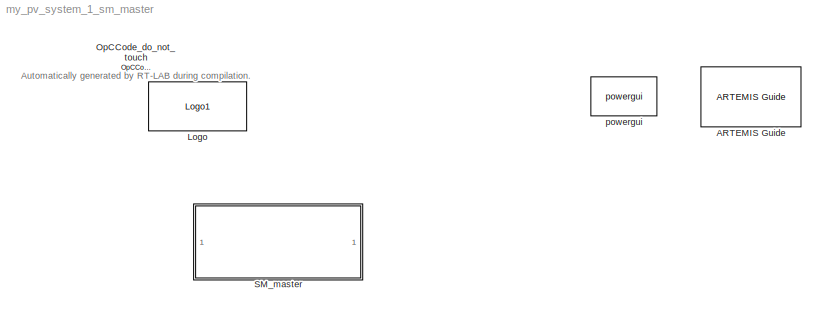
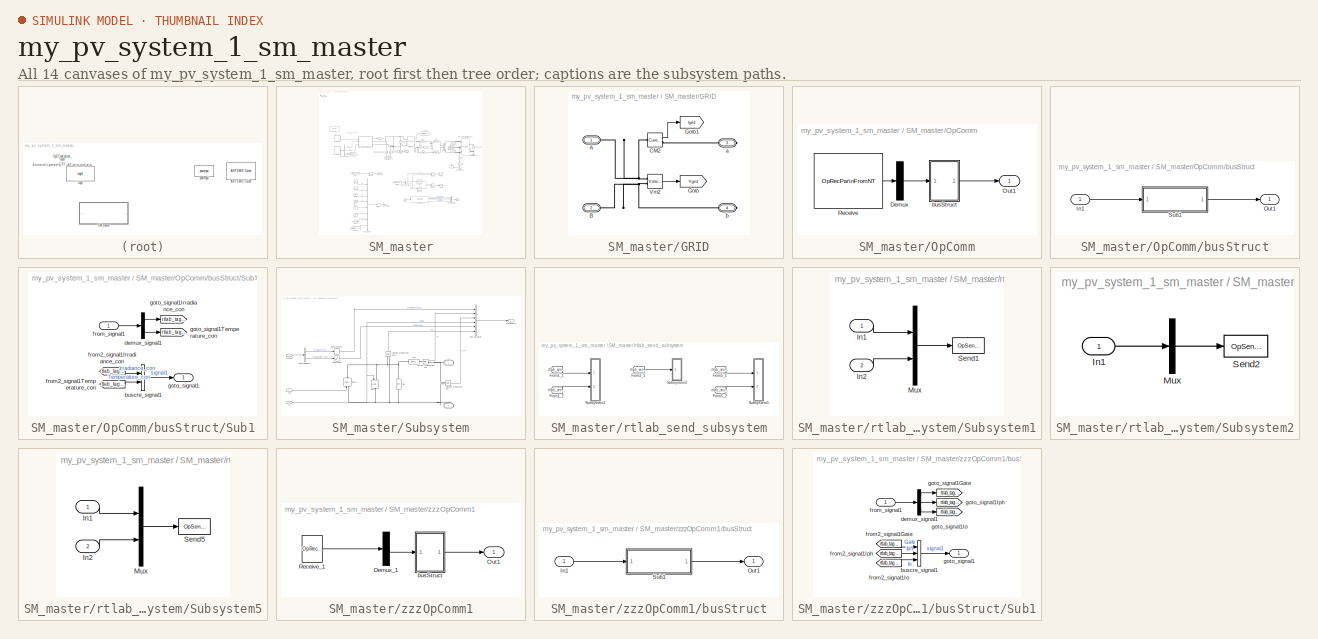
[diagram: thumbnail index - all 14 canvases of the model, root first then tree order]
MODEL my_pv_system_1_sm_master
KIND model
BLOCK [Reference] ARTEMIS Guide  REF=artemis/ARTEMIS/ARTEMIS Guide
  Description = 5.0_z1
  LF = off
  Ports = []
  RT_fullcomp = off
  SID = 394
  SPSRulesBlock = SPSRules
  SourceBlock = artemis/ARTEMIS/ARTEMIS Guide
  SourceType = ARTEMISmethode
  Tag = FTSSmethode_opal_4hx0r99
  Thy_Impulse = on
  Ts = 50e-6
  ao = on
  ct_mac = off
  ctmm = off
  custom_type = off
  dpl_type = ARTEMiS DPL
  dtc = Off
  dtc_extra = 1
  dtc_opt = normal
  dtc_pied = 0.5
  dtc_sws = normal
  dyna = off
  lin_mov = off
  lock = on
  lsp = [0.001 2]
  nb_perm = 4
  opt = art5
  para = on
  paraExtinctionThy = off
  rlc_type = off
  simtype = off
  spike_skip = Disabled
  ssn = on
  ssn_ImpulseLoopBlockedStateUpdate = 5
  ssn_ext = off
  ssn_impulse = off
  ssn_impulse_loop = 5
  ssn_itvc = off
  ssn_ivic = off
  ssn_mov_iter_number = 5
  ssn_quasimpulse = off
  ssn_solver = Art5 with Backward Euler nodal interface
  ssn_switch_iter_number = 5
  tre = on
BLOCK [Reference] Logo  REF=opal_lib/Logo1
  Ports = []
  SID = 1
  SourceBlock = opal_lib/Logo1
  SourceType = Opal-RT logo
  vide = []
BLOCK [Reference] OpCCode_do_not_touch  REF=opal_lib/Communication/OpCCode
  FunctionWithSeparateData = off
  GeneratePreprocessorConditionals = off
  Ports = []
  SID = 431
  ShowPortLabels = FromPortIcon
  SourceBlock = opal_lib/Communication/OpCCode
  SystemSampleTime = -1
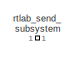
[diagram: SM_master - part 1/4, top left region]
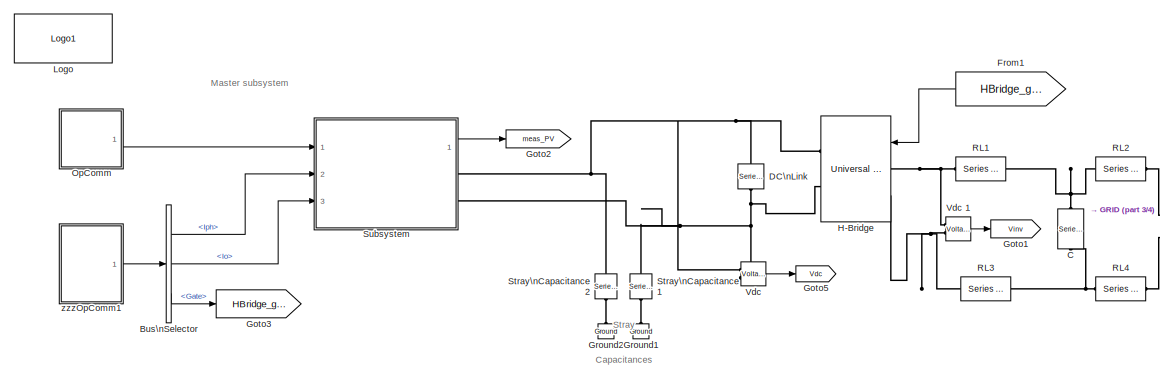
[diagram: SM_master - part 2/4, central region]
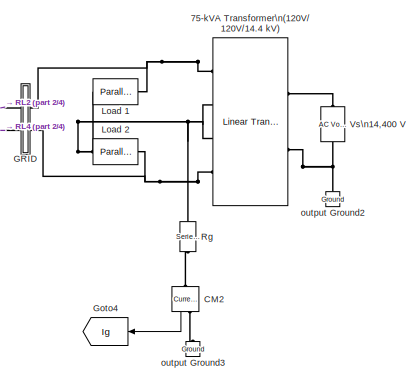
[diagram: SM_master - part 3/4, middle right region]
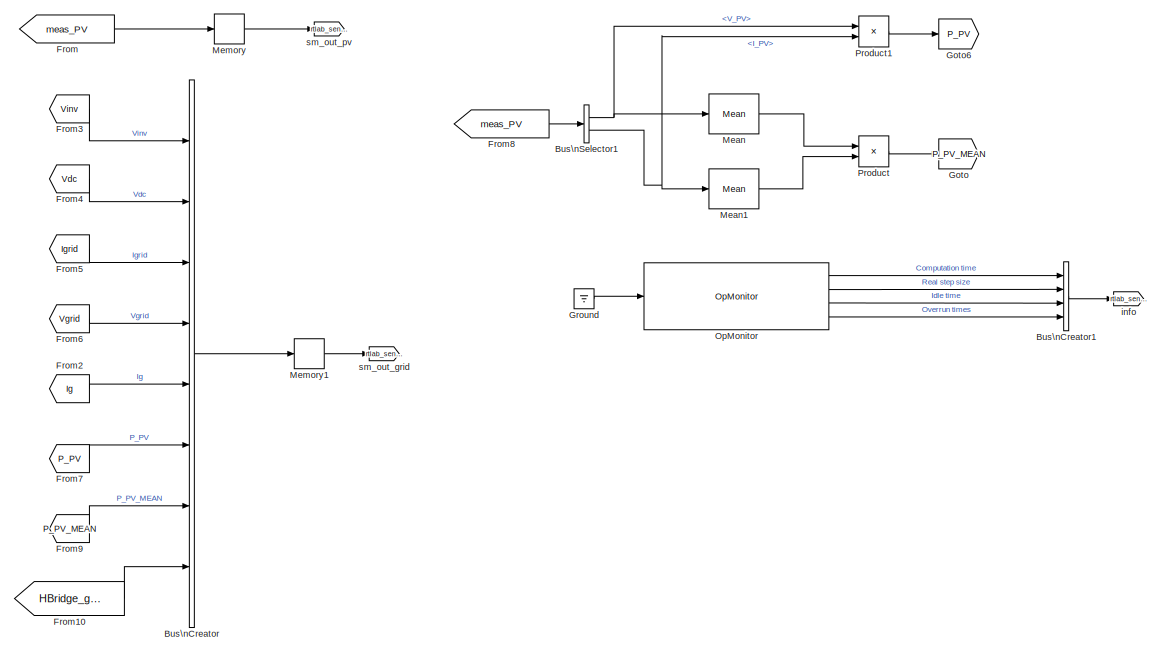
[diagram: SM_master - part 4/4, bottom center region]
BLOCK [SubSystem] SM_master
  Ports = []
  RequestExecContextInheritance = off
  SID = 14
BLOCK [Reference] SM_master/75-kVA Transformer\n(120V//120V//14.4 kV)  REF=powerlib/Elements/Linear Transformer
  DataType = off
  Measurements = None
  NominalPower = [75e3,60]
  Ports = [0, 0, 0, 0, 0, 2, 4]
  RmLm = [50,50]
  SID = 86
  SourceBlock = powerlib/Elements/Linear Transformer
  SourceType = Linear Transformer
  ThreeWindings = on
  UNITS = pu
  winding1 = [14.4e3 0.01,0.03]
  winding2 = [120,0.02,0]
  winding3 = [120,0.02,0]
BLOCK [BusCreator] SM_master/Bus\nCreator
  DisplayOption = bar
  Inputs = 8
  Ports = [8, 1]
  SID = 354
BLOCK [BusCreator] SM_master/Bus\nCreator1
  DisplayOption = bar
  Ports = [4, 1]
  SID = 378
BLOCK [BusSelector] SM_master/Bus\nSelector
  OutputSignals = Iph,Io,Gate
  Ports = [1, 3]
  SID = 374
BLOCK [BusSelector] SM_master/Bus\nSelector1
  OutputSignals = V_PV,I_PV
  Ports = [1, 2]
  SID = 387
BLOCK [Reference] SM_master/C  REF=powerlib/Elements/Series RLC Load
  ActivePower = 10.5
  AttributesFormatString = \\n
  CapacitivePower = 525
  InductivePower = 0
  InitialCurrent = 0
  InitialVoltage = 0
  LConnTagsString = a
  Measurements = None
  NominalFrequency = 60
  NominalVoltage = 240
  Ports = [0, 0, 0, 0, 0, 1, 1]
  RConnTagsString = __new0
  SID = 87
  SetiL0 = off
  Setx0 = off
  SourceBlock = powerlib/Elements/Series RLC Load
  SourceType = Series RLC Load
BLOCK [Reference] SM_master/CM2  REF=powerlib/Measurements/Current Measurement
  OutputType = Complex
  PSBequivalent = 0
  PhasorSimulation = off
  Ports = [0, 1, 0, 0, 0, 1, 1]
  SID = 88
  SourceBlock = powerlib/Measurements/Current Measurement
  SourceType = Current Measurement
  UserDataPersistent = on
BLOCK [Reference] SM_master/DC\nLink  REF=powerlib/Elements/Series RLC Branch
  AttributesFormatString = \\n
  BranchType = C
  Capacitance = 3000e-6
  Inductance = 1.0
  InitialCurrent = 0
  InitialVoltage = 425
  LConnTagsString = __new0
  Measurements = None
  Ports = [0, 0, 0, 0, 0, 1, 1]
  RConnTagsString = __new0
  Resistance = 1.0
  SID = 89
  SetiL0 = off
  Setx0 = on
  SourceBlock = powerlib/Elements/Series RLC Branch
  SourceType = Series RLC Branch
BLOCK [From] SM_master/From
  GotoTag = meas_PV
  SID = 146
  TagVisibility = global
BLOCK [From] SM_master/From1
  GotoTag = HBridge_gate
  SID = 148
  TagVisibility = global
BLOCK [From] SM_master/From10
  GotoTag = HBridge_gate
  SID = 401
  TagVisibility = global
BLOCK [From] SM_master/From2
  GotoTag = Ig
  SID = 355
  TagVisibility = global
BLOCK [From] SM_master/From3
  GotoTag = Vinv
  SID = 356
  TagVisibility = global
BLOCK [From] SM_master/From4
  GotoTag = Vdc
  SID = 164
  TagVisibility = global
BLOCK [From] SM_master/From5
  GotoTag = Igrid
  SID = 166
  TagVisibility = global
BLOCK [From] SM_master/From6
  GotoTag = Vgrid
  SID = 167
  TagVisibility = global
BLOCK [From] SM_master/From7
  GotoTag = P_PV
  SID = 393
BLOCK [From] SM_master/From8
  GotoTag = meas_PV
  SID = 386
  TagVisibility = global
BLOCK [From] SM_master/From9
  GotoTag = P_PV_MEAN
  SID = 400
BLOCK [SubSystem] SM_master/GRID
  Ports = [0, 0, 0, 0, 0, 2, 2]
  RequestExecContextInheritance = off
  SID = 90
BLOCK [PMIOPort] SM_master/GRID/A
  Port = 1
  SID = 95
  Side = Left
BLOCK [PMIOPort] SM_master/GRID/B
  Port = 2
  SID = 96
  Side = Left
BLOCK [Reference] SM_master/GRID/CM2  REF=powerlib/Measurements/Current Measurement
  OutputType = Complex
  PSBequivalent = 0
  PhasorSimulation = off
  Ports = [0, 1, 0, 0, 0, 1, 1]
  SID = 91
  SourceBlock = powerlib/Measurements/Current Measurement
  SourceType = Current Measurement
  UserDataPersistent = on
BLOCK [Goto] SM_master/GRID/Goto
  GotoTag = Vgrid
  SID = 92
  TagVisibility = global
BLOCK [Goto] SM_master/GRID/Goto1
  GotoTag = Igrid
  SID = 93
  TagVisibility = global
BLOCK [Reference] SM_master/GRID/Vm2  REF=powerlib/Measurements/Voltage Measurement
  OutputType = Complex
  PSBequivalent = 0
  PhasorSimulation = off
  Ports = [0, 1, 0, 0, 0, 2]
  SID = 94
  SourceBlock = powerlib/Measurements/Voltage Measurement
  SourceType = Voltage Measurement
  UserDataPersistent = on
BLOCK [PMIOPort] SM_master/GRID/a
  Port = 3
  SID = 97
  Side = Right
BLOCK [PMIOPort] SM_master/GRID/b
  Port = 4
  SID = 98
  Side = Right
BLOCK [Goto] SM_master/Goto
  GotoTag = P_PV_MEAN
  SID = 392
BLOCK [Goto] SM_master/Goto1
  GotoTag = Vinv
  SID = 99
  TagVisibility = global
BLOCK [Goto] SM_master/Goto2
  GotoTag = meas_PV
  SID = 100
  TagVisibility = global
BLOCK [Goto] SM_master/Goto3
  GotoTag = HBridge_gate
  SID = 147
  TagVisibility = global
BLOCK [Goto] SM_master/Goto4
  GotoTag = Ig
  SID = 150
  TagVisibility = global
BLOCK [Goto] SM_master/Goto5
  GotoTag = Vdc
  SID = 101
  TagVisibility = global
BLOCK [Goto] SM_master/Goto6
  GotoTag = P_PV
  SID = 398
BLOCK [Ground] SM_master/Ground
  SID = 379
BLOCK [Reference] SM_master/Ground1  REF=powerlib/Elements/Ground
  LConnTagsString = a
  Ports = [0, 0, 0, 0, 0, 1]
  SID = 102
  SourceBlock = powerlib/Elements/Ground
  SourceType = Ground
BLOCK [Reference] SM_master/Ground2  REF=powerlib/Elements/Ground
  LConnTagsString = a
  Ports = [0, 0, 0, 0, 0, 1]
  SID = 103
  SourceBlock = powerlib/Elements/Ground
  SourceType = Ground
BLOCK [Reference] SM_master/H-Bridge   REF=powerlib/Power\nElectronics/Universal Bridge
  Arms = 2
  Device = IGBT / Diodes
  ForwardVoltage = 0
  ForwardVoltages = [ 0 0 ]
  GTOparameters = [ 10e-6 , 20e-6 ]
  IGBTparameters = [ 50e-6 , 50e-6 ]*0
  Lon = 0
  Measurements = None
  Measurements_2 = None
  Ports = [1, 0, 0, 0, 0, 2, 2]
  Ron = 1e-3
  SID = 104
  SnubberCapacitance = inf
  SnubberResistance = 1e6
  SourceBlock = powerlib/Power\nElectronics/Universal Bridge
  SourceType = Universal Bridge
  converterType = Rectifier
BLOCK [Reference] SM_master/Load 1  REF=powerlib/Elements/Parallel RLC Load
  ActivePower = 5e3
  AttributesFormatString = \\n
  CapacitivePower = 0
  InductivePower = 2e3
  InitialCurrent = 0
  InitialVoltage = 0
  LConnTagsString = a
  Measurements = None
  NominalFrequency = 50
  NominalVoltage = 120
  Ports = [0, 0, 0, 0, 0, 1, 1]
  RConnTagsString = __new0
  SID = 107
  SetiL0 = off
  Setx0 = off
  SourceBlock = powerlib/Elements/Parallel RLC Load
  SourceType = Parallel RLC Load
BLOCK [Reference] SM_master/Load 2  REF=powerlib/Elements/Parallel RLC Load
  ActivePower = 5e3
  AttributesFormatString = \\n
  CapacitivePower = 0
  InductivePower = 2e3
  InitialCurrent = 0
  InitialVoltage = 0
  LConnTagsString = a
  Measurements = None
  NominalFrequency = 50
  NominalVoltage = 120
  Ports = [0, 0, 0, 0, 0, 1, 1]
  RConnTagsString = __new0
  SID = 108
  SetiL0 = off
  Setx0 = off
  SourceBlock = powerlib/Elements/Parallel RLC Load
  SourceType = Parallel RLC Load
BLOCK [Reference] SM_master/Logo  REF=opal_lib/Logo1
  Ports = []
  SID = 18
  SourceBlock = opal_lib/Logo1
  SourceType = Opal-RT logo
  vide = []
BLOCK [Reference] SM_master/Mean  REF=powerlib_meascontrol/Measurements/Mean
  Freq = 50
  Ports = [1, 1]
  SID = 388
  SourceBlock = powerlib_meascontrol/Measurements/Mean
  SourceType = Mean
  Ts = 0
  Vinit = 0
BLOCK [Reference] SM_master/Mean1  REF=powerlib_meascontrol/Measurements/Mean
  Freq = 50
  Ports = [1, 1]
  SID = 389
  SourceBlock = powerlib_meascontrol/Measurements/Mean
  SourceType = Mean
  Ts = 0
  Vinit = 0
BLOCK [Memory] SM_master/Memory
  InheritSampleTime = on
  SID = 19
BLOCK [Memory] SM_master/Memory1
  InheritSampleTime = on
  SID = 162
BLOCK [SubSystem] SM_master/OpComm
  Ports = [0, 1]
  RequestExecContextInheritance = off
  SID = 448
BLOCK [Demux] SM_master/OpComm/Demux
  Outputs = [2]
  Ports = [1, 1]
  SID = 449
BLOCK [Outport] SM_master/OpComm/Out1
  IconDisplay = Port number
  SID = 463
BLOCK [Reference] SM_master/OpComm/Receive  REF=opal_lib/Communication/OpRecPar\nFromNT
  Data_width = 2
  InitialConditions = [500;25]
  Ports = [0, 1]
  SID = 450
  SourceBlock = opal_lib/Communication/OpRecPar\nFromNT
  SourceType = OPAL Receive Icon
BLOCK [SubSystem] SM_master/OpComm/busStruct
  Ports = [1, 1]
  RequestExecContextInheritance = off
  SID = 451
BLOCK [Inport] SM_master/OpComm/busStruct/In1
  IconDisplay = Port number
  SID = 452
BLOCK [Outport] SM_master/OpComm/busStruct/Out1
  IconDisplay = Port number
  SID = 462
BLOCK [SubSystem] SM_master/OpComm/busStruct/Sub1
  Ports = [1, 1]
  RequestExecContextInheritance = off
  SID = 453
BLOCK [BusCreator] SM_master/OpComm/busStruct/Sub1/buscre_signal1
  Inputs = 2
  Ports = [2, 1]
  SID = 455
BLOCK [Demux] SM_master/OpComm/busStruct/Sub1/demux_signal1
  Outputs = [1  1]
  Ports = [1, 2]
  SID = 456
BLOCK [From] SM_master/OpComm/busStruct/Sub1/from2_signal1Irradiance_con
  GotoTag = rtlab_tag_1
  SID = 457
BLOCK [From] SM_master/OpComm/busStruct/Sub1/from2_signal1Temperature_con
  GotoTag = rtlab_tag_2
  SID = 458
BLOCK [Inport] SM_master/OpComm/busStruct/Sub1/from_signal1
  IconDisplay = Port number
  SID = 454
BLOCK [Outport] SM_master/OpComm/busStruct/Sub1/goto_signal1
  IconDisplay = Port number
  SID = 461
BLOCK [Goto] SM_master/OpComm/busStruct/Sub1/goto_signal1Irradiance_con
  GotoTag = rtlab_tag_1
  SID = 459
BLOCK [Goto] SM_master/OpComm/busStruct/Sub1/goto_signal1Temperature_con
  GotoTag = rtlab_tag_2
  SID = 460
BLOCK [Reference] SM_master/OpMonitor  REF=rtlab/Monitoring/OpMonitor
  Ports = [1, 4]
  SID = 380
  SourceBlock = rtlab/Monitoring/OpMonitor
  SourceType = OpMonitor
  compute_time = on
  idle_time = on
  nb_overruns = on
  real_step = on
  user_name = my_event_name,another_event_name
  user_time = off
BLOCK [Product] SM_master/Product
  InputSameDT = off
  OutDataTypeStr = Inherit: Inherit via internal rule
  Ports = [2, 1]
  RndMeth = Floor
  SID = 390
  SaturateOnIntegerOverflow = off
BLOCK [Product] SM_master/Product1
  InputSameDT = off
  OutDataTypeStr = Inherit: Inherit via internal rule
  Ports = [2, 1]
  RndMeth = Floor
  SID = 399
  SaturateOnIntegerOverflow = off
BLOCK [Reference] SM_master/RL1  REF=powerlib/Elements/Series RLC Branch
  BranchType = RL
  Capacitance = 1e-6
  Inductance = 2.183e-3
  InitialCurrent = 0
  InitialVoltage = 0
  LConnTagsString = __new0
  Measurements = None
  Ports = [0, 0, 0, 0, 0, 1, 1]
  RConnTagsString = __new0
  Resistance = 8.23e-3
  SID = 109
  SetiL0 = off
  Setx0 = off
  SourceBlock = powerlib/Elements/Series RLC Branch
  SourceType = Series RLC Branch
BLOCK [Reference] SM_master/RL2  REF=powerlib/Elements/Series RLC Branch
  BranchType = RL
  Capacitance = 1e-6
  Inductance = 2.183e-3
  InitialCurrent = 0
  InitialVoltage = 0
  LConnTagsString = __new0
  Measurements = None
  Ports = [0, 0, 0, 0, 0, 1, 1]
  RConnTagsString = __new0
  Resistance = 8.23e-3
  SID = 110
  SetiL0 = off
  Setx0 = off
  SourceBlock = powerlib/Elements/Series RLC Branch
  SourceType = Series RLC Branch
BLOCK [Reference] SM_master/RL3  REF=powerlib/Elements/Series RLC Branch
  BranchType = RL
  Capacitance = 1e-6
  Inductance = 2.183e-3
  InitialCurrent = 0
  InitialVoltage = 0
  LConnTagsString = __new0
  Measurements = None
  Ports = [0, 0, 0, 0, 0, 1, 1]
  RConnTagsString = __new0
  Resistance = 8.23e-3
  SID = 111
  SetiL0 = off
  Setx0 = off
  SourceBlock = powerlib/Elements/Series RLC Branch
  SourceType = Series RLC Branch
BLOCK [Reference] SM_master/RL4  REF=powerlib/Elements/Series RLC Branch
  BranchType = RL
  Capacitance = 1e-6
  Inductance = 2.183e-3
  InitialCurrent = 0
  InitialVoltage = 0
  LConnTagsString = __new0
  Measurements = None
  Ports = [0, 0, 0, 0, 0, 1, 1]
  RConnTagsString = __new0
  Resistance = 8.23e-3
  SID = 112
  SetiL0 = off
  Setx0 = off
  SourceBlock = powerlib/Elements/Series RLC Branch
  SourceType = Series RLC Branch
BLOCK [Reference] SM_master/Rg  REF=powerlib/Elements/Series RLC Branch
  BranchType = R
  Capacitance = 50e-9
  Inductance = 1
  InitialCurrent = 0
  InitialVoltage = 0
  LConnTagsString = __new0
  Measurements = None
  Ports = [0, 0, 0, 0, 0, 1, 1]
  RConnTagsString = __new0
  Resistance = 0.2
  SID = 114
  SetiL0 = off
  Setx0 = off
  SourceBlock = powerlib/Elements/Series RLC Branch
  SourceType = Series RLC Branch
BLOCK [Reference] SM_master/Stray\nCapacitance1  REF=powerlib/Elements/Series RLC Branch
  BranchType = C
  Capacitance = 4e-9
  Inductance = 1
  InitialCurrent = 0
  InitialVoltage = 0
  LConnTagsString = __new0
  Measurements = None
  Ports = [0, 0, 0, 0, 0, 1, 1]
  RConnTagsString = __new0
  Resistance = 1e-3
  SID = 116
  SetiL0 = off
  Setx0 = off
  SourceBlock = powerlib/Elements/Series RLC Branch
  SourceType = Series RLC Branch
BLOCK [Reference] SM_master/Stray\nCapacitance2  REF=powerlib/Elements/Series RLC Branch
  BranchType = C
  Capacitance = 4e-9
  Inductance = 1
  InitialCurrent = 0
  InitialVoltage = 0
  LConnTagsString = __new0
  Measurements = None
  Ports = [0, 0, 0, 0, 0, 1, 1]
  RConnTagsString = __new0
  Resistance = 1e-3
  SID = 117
  SetiL0 = off
  Setx0 = off
  SourceBlock = powerlib/Elements/Series RLC Branch
  SourceType = Series RLC Branch
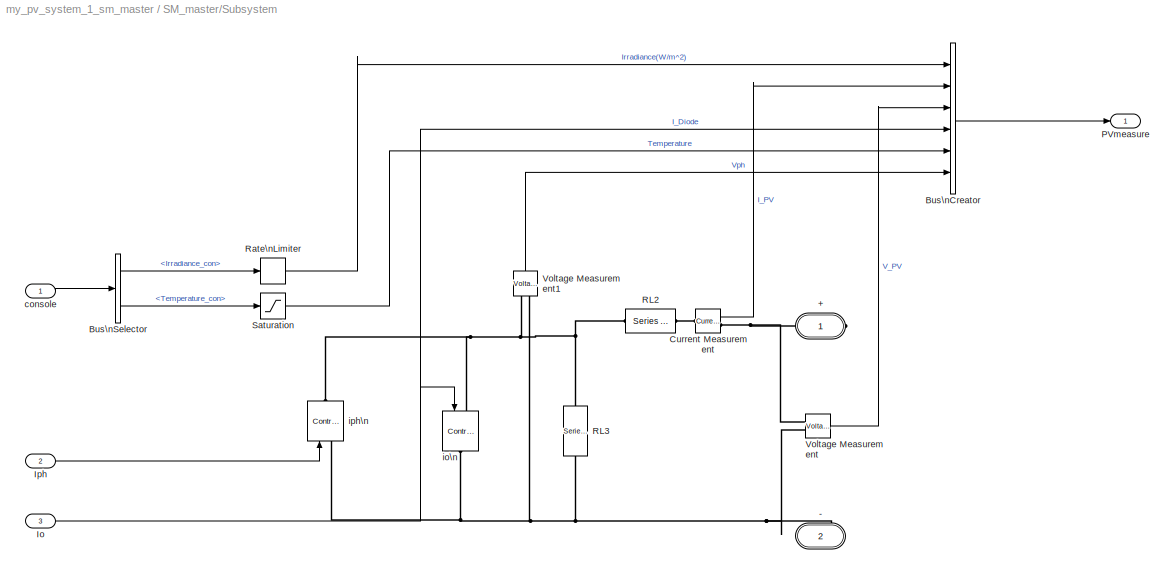
BLOCK [SubSystem] SM_master/Subsystem
  Ports = [3, 1, 0, 0, 0, 0, 2]
  RequestExecContextInheritance = off
  SID = 118
BLOCK [PMIOPort] SM_master/Subsystem/+
  Port = 1
  SID = 135
  Side = Right
BLOCK [PMIOPort] SM_master/Subsystem/-
  Port = 2
  SID = 136
  Side = Right
BLOCK [BusCreator] SM_master/Subsystem/Bus\nCreator
  DisplayOption = bar
  Inputs = 6
  Ports = [6, 1]
  SID = 353
BLOCK [BusSelector] SM_master/Subsystem/Bus\nSelector
  OutputSignals = Irradiance_con,Temperature_con
  Ports = [1, 2]
  SID = 372
BLOCK [Reference] SM_master/Subsystem/Current Measurement  REF=powerlib/Measurements/Current Measurement
  OutputType = Complex
  PSBequivalent = 0
  PhasorSimulation = off
  Ports = [0, 1, 0, 0, 0, 1, 1]
  SID = 126
  SourceBlock = powerlib/Measurements/Current Measurement
  SourceType = Current Measurement
  UserDataPersistent = on
BLOCK [Inport] SM_master/Subsystem/Io
  IconDisplay = Port number
  Port = 3
  SID = 376
BLOCK [Inport] SM_master/Subsystem/Iph
  IconDisplay = Port number
  Port = 2
  SID = 373
BLOCK [Outport] SM_master/Subsystem/PVmeasure
  IconDisplay = Port number
  SID = 137
BLOCK [Reference] SM_master/Subsystem/RL2  REF=powerlib/Elements/Series RLC Branch
  BranchType = R
  Capacitance = 1e-6
  Inductance = 2.183e-3
  InitialCurrent = 0
  InitialVoltage = 0
  LConnTagsString = __new0
  Measurements = None
  Ports = [0, 0, 0, 0, 0, 1, 1]
  RConnTagsString = __new0
  Resistance = 0.247*14
  SID = 129
  SetiL0 = off
  Setx0 = off
  SourceBlock = powerlib/Elements/Series RLC Branch
  SourceType = Series RLC Branch
BLOCK [Reference] SM_master/Subsystem/RL3  REF=powerlib/Elements/Series RLC Branch
  BranchType = R
  Capacitance = 1e-6
  Inductance = 2.183e-3
  InitialCurrent = 0
  InitialVoltage = 0
  LConnTagsString = __new0
  Measurements = None
  Ports = [0, 0, 0, 0, 0, 1, 1]
  RConnTagsString = __new0
  Resistance = 301.8*14
  SID = 130
  SetiL0 = off
  Setx0 = off
  SourceBlock = powerlib/Elements/Series RLC Branch
  SourceType = Series RLC Branch
BLOCK [RateLimiter] SM_master/Subsystem/Rate\nLimiter
  FallingSlewLimit = -8000
  InitialCondition = 1000
  RisingSlewLimit = 8000
  SID = 113
  SampleTimeMode = inherited
BLOCK [Saturate] SM_master/Subsystem/Saturation
  InputPortMap = u0
  LowerLimit = 5
  Ports = [1, 1]
  SID = 115
  UpperLimit = 55
BLOCK [Reference] SM_master/Subsystem/Voltage Measurement  REF=powerlib/Measurements/Voltage Measurement
  OutputType = Complex
  PSBequivalent = 0
  PhasorSimulation = off
  Ports = [0, 1, 0, 0, 0, 2]
  SID = 131
  SourceBlock = powerlib/Measurements/Voltage Measurement
  SourceType = Voltage Measurement
  UserDataPersistent = on
BLOCK [Reference] SM_master/Subsystem/Voltage Measurement1  REF=powerlib/Measurements/Voltage Measurement
  OutputType = Complex
  PSBequivalent = 0
  PhasorSimulation = off
  Ports = [0, 1, 0, 0, 0, 2]
  SID = 132
  SourceBlock = powerlib/Measurements/Voltage Measurement
  SourceType = Voltage Measurement
  UserDataPersistent = on
BLOCK [Inport] SM_master/Subsystem/console
  IconDisplay = Port number
  SID = 371
BLOCK [Reference] SM_master/Subsystem/io\n  REF=powerlib/Electrical\nSources/Controlled Current Source
  Amplitude = 8.05
  Frequency = 0
  Initialize = on
  Measurements = None
  Phase = 0
  Ports = [1, 0, 0, 0, 0, 1, 1]
  SID = 133
  SourceBlock = powerlib/Electrical\nSources/Controlled Current Source
  SourceType = Controlled Current Source
  Source_Type = DC
BLOCK [Reference] SM_master/Subsystem/iph\n  REF=powerlib/Electrical\nSources/Controlled Current Source
  Amplitude = 8.05
  Frequency = 0
  Initialize = on
  Measurements = None
  Phase = 0
  Ports = [1, 0, 0, 0, 0, 1, 1]
  SID = 134
  SourceBlock = powerlib/Electrical\nSources/Controlled Current Source
  SourceType = Controlled Current Source
  Source_Type = DC
BLOCK [Reference] SM_master/Vdc   REF=powerlib/Measurements/Voltage Measurement
  AttributesFormatString = \\n
  OutputType = Magnitude
  PSBequivalent = 0
  PhasorSimulation = off
  Ports = [0, 1, 0, 0, 0, 2]
  SID = 139
  SourceBlock = powerlib/Measurements/Voltage Measurement
  SourceType = Voltage Measurement
  Tag = PoWeRsYsTeMmEaSuReMeNt
BLOCK [Reference] SM_master/Vdc 1  REF=powerlib/Measurements/Voltage Measurement
  AttributesFormatString = \\n
  OutputType = Magnitude
  PSBequivalent = 0
  PhasorSimulation = off
  Ports = [0, 1, 0, 0, 0, 2]
  SID = 140
  SourceBlock = powerlib/Measurements/Voltage Measurement
  SourceType = Voltage Measurement
  Tag = PoWeRsYsTeMmEaSuReMeNt
BLOCK [Reference] SM_master/Vs\n14,400 V  REF=powerlib/Electrical\nSources/AC Voltage Source
  Amplitude = 14400*sqrt(2)
  AttributesFormatString = \\n
  Description = source block
  Frequency = 50
  Measurements = None
  Phase = 0
  Ports = [0, 0, 0, 0, 0, 1, 1]
  SID = 141
  SampleTime = 0
  SourceBlock = powerlib/Electrical\nSources/AC Voltage Source
  SourceType = AC Voltage Source
BLOCK [Goto] SM_master/info
  GotoTag = rtlab_send_3
  SID = 522
  TagVisibility = global
BLOCK [Reference] SM_master/output Ground2  REF=powerlib/Elements/Ground
  AttributesFormatString = \\n
  LConnTagsString = a
  Ports = [0, 0, 0, 0, 0, 1]
  SID = 142
  SourceBlock = powerlib/Elements/Ground
  SourceType = Ground
BLOCK [Reference] SM_master/output Ground3  REF=powerlib/Elements/Ground
  AttributesFormatString = \\n
  LConnTagsString = a
  Ports = [0, 0, 0, 0, 0, 1]
  SID = 143
  SourceBlock = powerlib/Elements/Ground
  SourceType = Ground
BLOCK [SubSystem] SM_master/rtlab_send_subsystem
  Ports = []
  Priority = -100
  RequestExecContextInheritance = off
  SID = 500
BLOCK [From] SM_master/rtlab_send_subsystem/From1_1
  GotoTag = rtlab_send_1
  SID = 504
BLOCK [From] SM_master/rtlab_send_subsystem/From1_2
  GotoTag = rtlab_send_2
  SID = 506
BLOCK [From] SM_master/rtlab_send_subsystem/From2_1
  GotoTag = rtlab_send_3
  SID = 511
BLOCK [From] SM_master/rtlab_send_subsystem/From5_1
  GotoTag = rtlab_send_1
  SID = 516
BLOCK [From] SM_master/rtlab_send_subsystem/From5_2
  GotoTag = rtlab_send_2
  SID = 518
BLOCK [SubSystem] SM_master/rtlab_send_subsystem/Subsystem1
  Ports = [2]
  RequestExecContextInheritance = off
  SID = 501
BLOCK [Inport] SM_master/rtlab_send_subsystem/Subsystem1/In1
  IconDisplay = Port number
  SID = 505
BLOCK [Inport] SM_master/rtlab_send_subsystem/Subsystem1/In2
  IconDisplay = Port number
  Port = 2
  SID = 507
BLOCK [Mux] SM_master/rtlab_send_subsystem/Subsystem1/Mux
  Inputs = 2
  Ports = [2, 1]
  SID = 502
BLOCK [Reference] SM_master/rtlab_send_subsystem/Subsystem1/Send1  REF=opal_lib/Communication/OpSendToNT
  Acqu_group = 1
  Ports = [1]
  SID = 503
  SourceBlock = opal_lib/Communication/OpSendToNT
  SourceType = OPAL Send Icon
BLOCK [SubSystem] SM_master/rtlab_send_subsystem/Subsystem2
  Ports = [1]
  RequestExecContextInheritance = off
  SID = 508
BLOCK [Inport] SM_master/rtlab_send_subsystem/Subsystem2/In1
  IconDisplay = Port number
  SID = 512
BLOCK [Mux] SM_master/rtlab_send_subsystem/Subsystem2/Mux
  Inputs = 1
  Ports = [1, 1]
  SID = 509
BLOCK [Reference] SM_master/rtlab_send_subsystem/Subsystem2/Send2  REF=opal_lib/Communication/OpSendToNT
  Acqu_group = 2
  Ports = [1]
  SID = 510
  SourceBlock = opal_lib/Communication/OpSendToNT
  SourceType = OPAL Send Icon
BLOCK [SubSystem] SM_master/rtlab_send_subsystem/Subsystem5
  Ports = [2]
  Priority = -200000
  RequestExecContextInheritance = off
  SID = 513
  TreatAsAtomicUnit = on
BLOCK [Inport] SM_master/rtlab_send_subsystem/Subsystem5/In1
  IconDisplay = Port number
  SID = 517
BLOCK [Inport] SM_master/rtlab_send_subsystem/Subsystem5/In2
  IconDisplay = Port number
  Port = 2
  SID = 519
BLOCK [Mux] SM_master/rtlab_send_subsystem/Subsystem5/Mux
  Inputs = 2
  Ports = [2, 1]
  SID = 514
BLOCK [Reference] SM_master/rtlab_send_subsystem/Subsystem5/Send5  REF=opal_lib/Communication/OpSend_rt
  Ports = [1]
  SID = 515
  SourceBlock = opal_lib/Communication/OpSend_rt
  SourceType = OPAL Send_rt Icon
  dest = 3
  priority2 = 0
  st = 5e-05
BLOCK [Goto] SM_master/sm_out_grid
  GotoTag = rtlab_send_2
  SID = 521
  TagVisibility = global
BLOCK [Goto] SM_master/sm_out_pv
  GotoTag = rtlab_send_1
  SID = 520
  TagVisibility = global
BLOCK [SubSystem] SM_master/zzzOpComm1
  Ports = [0, 1]
  RequestExecContextInheritance = off
  SID = 482
BLOCK [Demux] SM_master/zzzOpComm1/Demux_1
  Outputs = [6]
  Ports = [1, 1]
  SID = 483
BLOCK [Outport] SM_master/zzzOpComm1/Out1
  IconDisplay = Port number
  SID = 499
BLOCK [Reference] SM_master/zzzOpComm1/Receive_1  REF=opal_lib/Communication/OpRec_rt
  Data_width = 6
  Ports = [0, 1]
  SID = 484
  SourceBlock = opal_lib/Communication/OpRec_rt
  SourceType = OPAL Recv_rt Icon
  src = 3
  st = 5e-05
BLOCK [SubSystem] SM_master/zzzOpComm1/busStruct
  Ports = [1, 1]
  RequestExecContextInheritance = off
  SID = 485
BLOCK [Inport] SM_master/zzzOpComm1/busStruct/In1
  IconDisplay = Port number
  SID = 486
BLOCK [Outport] SM_master/zzzOpComm1/busStruct/Out1
  IconDisplay = Port number
  SID = 498
BLOCK [SubSystem] SM_master/zzzOpComm1/busStruct/Sub1
  Ports = [1, 1]
  RequestExecContextInheritance = off
  SID = 487
BLOCK [BusCreator] SM_master/zzzOpComm1/busStruct/Sub1/buscre_signal1
  Inputs = 3
  Ports = [3, 1]
  SID = 489
BLOCK [Demux] SM_master/zzzOpComm1/busStruct/Sub1/demux_signal1
  Outputs = [4  1  1]
  Ports = [1, 3]
  SID = 490
BLOCK [From] SM_master/zzzOpComm1/busStruct/Sub1/from2_signal1Gate
  GotoTag = rtlab_tag_1
  SID = 491
BLOCK [From] SM_master/zzzOpComm1/busStruct/Sub1/from2_signal1Io
  GotoTag = rtlab_tag_3
  SID = 492
BLOCK [From] SM_master/zzzOpComm1/busStruct/Sub1/from2_signal1Iph
  GotoTag = rtlab_tag_2
  SID = 493
BLOCK [Inport] SM_master/zzzOpComm1/busStruct/Sub1/from_signal1
  IconDisplay = Port number
  SID = 488
BLOCK [Outport] SM_master/zzzOpComm1/busStruct/Sub1/goto_signal1
  IconDisplay = Port number
  SID = 497
BLOCK [Goto] SM_master/zzzOpComm1/busStruct/Sub1/goto_signal1Gate
  GotoTag = rtlab_tag_1
  SID = 494
BLOCK [Goto] SM_master/zzzOpComm1/busStruct/Sub1/goto_signal1Io
  GotoTag = rtlab_tag_3
  SID = 495
BLOCK [Goto] SM_master/zzzOpComm1/busStruct/Sub1/goto_signal1Iph
  GotoTag = rtlab_tag_2
  SID = 496
BLOCK [Reference] powergui  REF=powerlib/powergui
  DisableRonSwitches = off
  DisableSnubberDevices = off
  DisableVfSwitches = off
  DisplayEquations = off
  DisplayStyle = 1
  EnableUseOfTLC = off
  ErrMax = 1e-4
  Frange = [0:2:500]
  FreqAxis = off
  FunctionMessages = off
  HookPort = off
  Interpol = off
  Iterations = 50
  MaxFrequency = 1000
  Pbase = 100e6
  Ports = []
  ResistiveCurrentMeasurement = off
  RestoreLinks = warning
  RmsSteady = 1
  SID = 327
  SPID = off
  SampleTime = 5e-05
  ShowGrid = off
  SolverType = Tustin/Backward Euler (TBE)
  SourceBlock = powerlib/powergui
  SourceType = PSB option menu block
  StartTime = 0.0
  SwTol = 0
  Ts = 100
  UnitsV = kV
  UnitsW = MW
  UserData = DataTag0
  UserDataPersistent = on
  Xlog = on
  Ylog = off
  ZoomFFT = off
  cycles = 1
  display = off
  echomessages = off
  frequency = 60
  frequencyindice = 50
  frequencyindicesteady = 1
  fundamental = 60
  methode = off
  save = off
  structure = 0
  variable = ZData
  x0status = blocks
ANNOTATION (root): Automatically generated by RT-LAB during compilation.
ANNOTATION SM_master: Master subsystem
ANNOTATION SM_master: Stray\nCapacitances
LINE SM_master/Bus\nCreator1:1 -> SM_master/info:1
LINE SM_master/Bus\nCreator:1 -> SM_master/Memory1:1
NET SM_master/Bus\nSelector1:1 -> SM_master/Mean:1, SM_master/Product1:1
NET SM_master/Bus\nSelector1:2 -> SM_master/Mean1:1, SM_master/Product1:2
LINE SM_master/Bus\nSelector:1 -> SM_master/Subsystem:2
LINE SM_master/Bus\nSelector:2 -> SM_master/Subsystem:3
LINE SM_master/Bus\nSelector:3 -> SM_master/Goto3:1
LINE SM_master/CM2:1 -> SM_master/Goto4:1
LINE SM_master/From10:1 -> SM_master/Bus\nCreator:8
LINE SM_master/From1:1 -> SM_master/H-Bridge :1
LINE SM_master/From2:1 -> SM_master/Bus\nCreator:5
LINE SM_master/From3:1 -> SM_master/Bus\nCreator:1
LINE SM_master/From4:1 -> SM_master/Bus\nCreator:2
LINE SM_master/From5:1 -> SM_master/Bus\nCreator:3
LINE SM_master/From6:1 -> SM_master/Bus\nCreator:4
LINE SM_master/From7:1 -> SM_master/Bus\nCreator:6
LINE SM_master/From8:1 -> SM_master/Bus\nSelector1:1
LINE SM_master/From9:1 -> SM_master/Bus\nCreator:7
LINE SM_master/From:1 -> SM_master/Memory:1
LINE SM_master/GRID/CM2:1 -> SM_master/GRID/Goto1:1
LINE SM_master/GRID/Vm2:1 -> SM_master/GRID/Goto:1
LINE SM_master/Ground:1 -> SM_master/OpMonitor:1
LINE SM_master/Mean1:1 -> SM_master/Product:2
LINE SM_master/Mean:1 -> SM_master/Product:1
LINE SM_master/Memory1:1 -> SM_master/sm_out_grid:1
LINE SM_master/Memory:1 -> SM_master/sm_out_pv:1
LINE SM_master/OpComm/Demux:1 -> SM_master/OpComm/busStruct:1
LINE SM_master/OpComm/Receive:1 -> SM_master/OpComm/Demux:1
LINE SM_master/OpComm/busStruct/In1:1 -> SM_master/OpComm/busStruct/Sub1:1
LINE SM_master/OpComm/busStruct/Sub1/buscre_signal1:1 -> SM_master/OpComm/busStruct/Sub1/goto_signal1:1
LINE SM_master/OpComm/busStruct/Sub1/demux_signal1:1 -> SM_master/OpComm/busStruct/Sub1/goto_signal1Irradiance_con:1
LINE SM_master/OpComm/busStruct/Sub1/demux_signal1:2 -> SM_master/OpComm/busStruct/Sub1/goto_signal1Temperature_con:1
LINE SM_master/OpComm/busStruct/Sub1/from2_signal1Irradiance_con:1 -> SM_master/OpComm/busStruct/Sub1/buscre_signal1:1
LINE SM_master/OpComm/busStruct/Sub1/from2_signal1Temperature_con:1 -> SM_master/OpComm/busStruct/Sub1/buscre_signal1:2
LINE SM_master/OpComm/busStruct/Sub1/from_signal1:1 -> SM_master/OpComm/busStruct/Sub1/demux_signal1:1
LINE SM_master/OpComm/busStruct/Sub1:1 -> SM_master/OpComm/busStruct/Out1:1
LINE SM_master/OpComm/busStruct:1 -> SM_master/OpComm/Out1:1
LINE SM_master/OpComm:1 -> SM_master/Subsystem:1
LINE SM_master/OpMonitor:1 -> SM_master/Bus\nCreator1:1
LINE SM_master/OpMonitor:2 -> SM_master/Bus\nCreator1:2
LINE SM_master/OpMonitor:3 -> SM_master/Bus\nCreator1:3
LINE SM_master/OpMonitor:4 -> SM_master/Bus\nCreator1:4
LINE SM_master/Product1:1 -> SM_master/Goto6:1
LINE SM_master/Product:1 -> SM_master/Goto:1
LINE SM_master/Subsystem/Bus\nCreator:1 -> SM_master/Subsystem/PVmeasure:1
LINE SM_master/Subsystem/Bus\nSelector:1 -> SM_master/Subsystem/Rate\nLimiter:1
LINE SM_master/Subsystem/Bus\nSelector:2 -> SM_master/Subsystem/Saturation:1
LINE SM_master/Subsystem/Current Measurement:1 -> SM_master/Subsystem/Bus\nCreator:2
NET SM_master/Subsystem/Io:1 -> SM_master/Subsystem/Bus\nCreator:4, SM_master/Subsystem/io\n:1
LINE SM_master/Subsystem/Iph:1 -> SM_master/Subsystem/iph\n:1
LINE SM_master/Subsystem/Rate\nLimiter:1 -> SM_master/Subsystem/Bus\nCreator:1
LINE SM_master/Subsystem/Saturation:1 -> SM_master/Subsystem/Bus\nCreator:5
LINE SM_master/Subsystem/Voltage Measurement1:1 -> SM_master/Subsystem/Bus\nCreator:6
LINE SM_master/Subsystem/Voltage Measurement:1 -> SM_master/Subsystem/Bus\nCreator:3
LINE SM_master/Subsystem/console:1 -> SM_master/Subsystem/Bus\nSelector:1
LINE SM_master/Subsystem:1 -> SM_master/Goto2:1
LINE SM_master/Vdc 1:1 -> SM_master/Goto1:1
LINE SM_master/Vdc :1 -> SM_master/Goto5:1
LINE SM_master/rtlab_send_subsystem/From1_1:1 -> SM_master/rtlab_send_subsystem/Subsystem1:1
LINE SM_master/rtlab_send_subsystem/From1_2:1 -> SM_master/rtlab_send_subsystem/Subsystem1:2
LINE SM_master/rtlab_send_subsystem/From2_1:1 -> SM_master/rtlab_send_subsystem/Subsystem2:1
LINE SM_master/rtlab_send_subsystem/From5_1:1 -> SM_master/rtlab_send_subsystem/Subsystem5:1
LINE SM_master/rtlab_send_subsystem/From5_2:1 -> SM_master/rtlab_send_subsystem/Subsystem5:2
LINE SM_master/rtlab_send_subsystem/Subsystem1/In1:1 -> SM_master/rtlab_send_subsystem/Subsystem1/Mux:1
LINE SM_master/rtlab_send_subsystem/Subsystem1/In2:1 -> SM_master/rtlab_send_subsystem/Subsystem1/Mux:2
LINE SM_master/rtlab_send_subsystem/Subsystem1/Mux:1 -> SM_master/rtlab_send_subsystem/Subsystem1/Send1:1
LINE SM_master/rtlab_send_subsystem/Subsystem2/In1:1 -> SM_master/rtlab_send_subsystem/Subsystem2/Mux:1
LINE SM_master/rtlab_send_subsystem/Subsystem2/Mux:1 -> SM_master/rtlab_send_subsystem/Subsystem2/Send2:1
LINE SM_master/rtlab_send_subsystem/Subsystem5/In1:1 -> SM_master/rtlab_send_subsystem/Subsystem5/Mux:1
LINE SM_master/rtlab_send_subsystem/Subsystem5/In2:1 -> SM_master/rtlab_send_subsystem/Subsystem5/Mux:2
LINE SM_master/rtlab_send_subsystem/Subsystem5/Mux:1 -> SM_master/rtlab_send_subsystem/Subsystem5/Send5:1
LINE SM_master/zzzOpComm1/Demux_1:1 -> SM_master/zzzOpComm1/busStruct:1
LINE SM_master/zzzOpComm1/Receive_1:1 -> SM_master/zzzOpComm1/Demux_1:1
LINE SM_master/zzzOpComm1/busStruct/In1:1 -> SM_master/zzzOpComm1/busStruct/Sub1:1
LINE SM_master/zzzOpComm1/busStruct/Sub1/buscre_signal1:1 -> SM_master/zzzOpComm1/busStruct/Sub1/goto_signal1:1
LINE SM_master/zzzOpComm1/busStruct/Sub1/demux_signal1:1 -> SM_master/zzzOpComm1/busStruct/Sub1/goto_signal1Gate:1
LINE SM_master/zzzOpComm1/busStruct/Sub1/demux_signal1:2 -> SM_master/zzzOpComm1/busStruct/Sub1/goto_signal1Iph:1
LINE SM_master/zzzOpComm1/busStruct/Sub1/demux_signal1:3 -> SM_master/zzzOpComm1/busStruct/Sub1/goto_signal1Io:1
LINE SM_master/zzzOpComm1/busStruct/Sub1/from2_signal1Gate:1 -> SM_master/zzzOpComm1/busStruct/Sub1/buscre_signal1:1
LINE SM_master/zzzOpComm1/busStruct/Sub1/from2_signal1Io:1 -> SM_master/zzzOpComm1/busStruct/Sub1/buscre_signal1:3
LINE SM_master/zzzOpComm1/busStruct/Sub1/from2_signal1Iph:1 -> SM_master/zzzOpComm1/busStruct/Sub1/buscre_signal1:2
LINE SM_master/zzzOpComm1/busStruct/Sub1/from_signal1:1 -> SM_master/zzzOpComm1/busStruct/Sub1/demux_signal1:1
LINE SM_master/zzzOpComm1/busStruct/Sub1:1 -> SM_master/zzzOpComm1/busStruct/Out1:1
LINE SM_master/zzzOpComm1/busStruct:1 -> SM_master/zzzOpComm1/Out1:1
LINE SM_master/zzzOpComm1:1 -> SM_master/Bus\nSelector:1
PLINE SM_master/75-kVA Transformer\n(120V//120V//14.4 kV):LConn1 -- SM_master/Vs\n14,400 V:RConn1
PNET net1: SM_master/75-kVA Transformer\n(120V//120V//14.4 kV):LConn2 -- SM_master/Vs\n14,400 V:LConn1 -- SM_master/output Ground2:LConn1
PNET net2: SM_master/75-kVA Transformer\n(120V//120V//14.4 kV):RConn1 -- SM_master/GRID:RConn1 -- SM_master/Load 1:RConn1
PNET net3: SM_master/75-kVA Transformer\n(120V//120V//14.4 kV):RConn2 -- SM_master/75-kVA Transformer\n(120V//120V//14.4 kV):RConn3 -- SM_master/Load 1:LConn1 -- SM_master/Load 2:LConn1 -- SM_master/Rg:LConn1
PNET net4: SM_master/75-kVA Transformer\n(120V//120V//14.4 kV):RConn4 -- SM_master/GRID:RConn2 -- SM_master/Load 2:RConn1
PNET net5: SM_master/C:LConn1 -- SM_master/RL3:RConn1 -- SM_master/RL4:LConn1
PNET net6: SM_master/C:RConn1 -- SM_master/RL1:RConn1 -- SM_master/RL2:LConn1
PLINE SM_master/CM2:LConn1 -- SM_master/Rg:RConn1
PLINE SM_master/CM2:RConn1 -- SM_master/output Ground3:LConn1
PNET net7: SM_master/DC\nLink:LConn1 -- SM_master/H-Bridge :RConn1 -- SM_master/Stray\nCapacitance2:LConn1 -- SM_master/Subsystem:RConn1 -- SM_master/Vdc :LConn1
PNET net8: SM_master/DC\nLink:RConn1 -- SM_master/H-Bridge :RConn2 -- SM_master/Stray\nCapacitance1:LConn1 -- SM_master/Subsystem:RConn2 -- SM_master/Vdc :LConn2
PNET net9: SM_master/GRID/A:RConn1 -- SM_master/GRID/CM2:LConn1 -- SM_master/GRID/Vm2:LConn1
PNET net10: SM_master/GRID/B:RConn1 -- SM_master/GRID/Vm2:LConn2 -- SM_master/GRID/b:RConn1
PLINE SM_master/GRID/CM2:RConn1 -- SM_master/GRID/a:RConn1
PLINE SM_master/GRID:LConn1 -- SM_master/RL2:RConn1
PLINE SM_master/GRID:LConn2 -- SM_master/RL4:RConn1
PLINE SM_master/Ground1:LConn1 -- SM_master/Stray\nCapacitance1:RConn1
PLINE SM_master/Ground2:LConn1 -- SM_master/Stray\nCapacitance2:RConn1
PNET net11: SM_master/H-Bridge :LConn1 -- SM_master/RL1:LConn1 -- SM_master/Vdc 1:LConn1
PNET net12: SM_master/H-Bridge :LConn2 -- SM_master/RL3:LConn1 -- SM_master/Vdc 1:LConn2
PNET net13: SM_master/Subsystem/+:RConn1 -- SM_master/Subsystem/Current Measurement:RConn1 -- SM_master/Subsystem/Voltage Measurement:LConn1
PNET net14: SM_master/Subsystem/-:RConn1 -- SM_master/Subsystem/RL3:LConn1 -- SM_master/Subsystem/Voltage Measurement1:LConn2 -- SM_master/Subsystem/Voltage Measurement:LConn2 -- SM_master/Subsystem/io\n:RConn1 -- SM_master/Subsystem/iph\n:LConn1
PLINE SM_master/Subsystem/Current Measurement:LConn1 -- SM_master/Subsystem/RL2:RConn1
PNET net15: SM_master/Subsystem/RL2:LConn1 -- SM_master/Subsystem/RL3:RConn1 -- SM_master/Subsystem/Voltage Measurement1:LConn1 -- SM_master/Subsystem/io\n:LConn1 -- SM_master/Subsystem/iph\n:RConn1
note: NET lines group one-source signal fan-out (src -> all destinations, sorted); 1:1 wires keep LINE; PNET lines group multi-terminal physical nets as a canonical sorted terminal list (undirected conserving connections); 2-terminal nets keep the pairwise PLINE form
